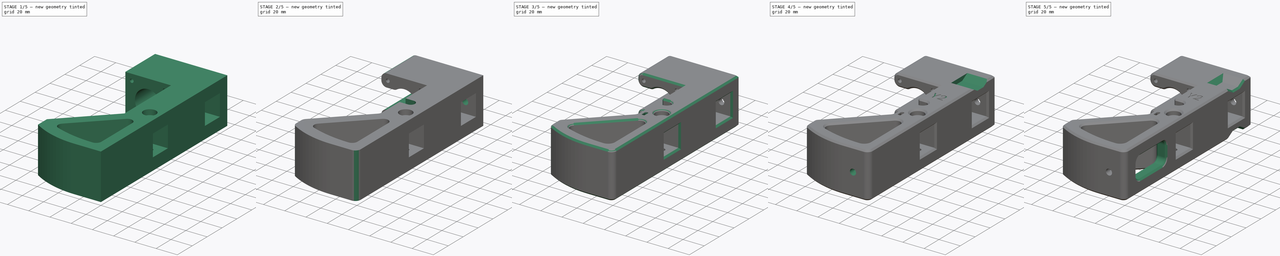
[diagram: build sequence overview — one tinted view per stage of 5, left to right]
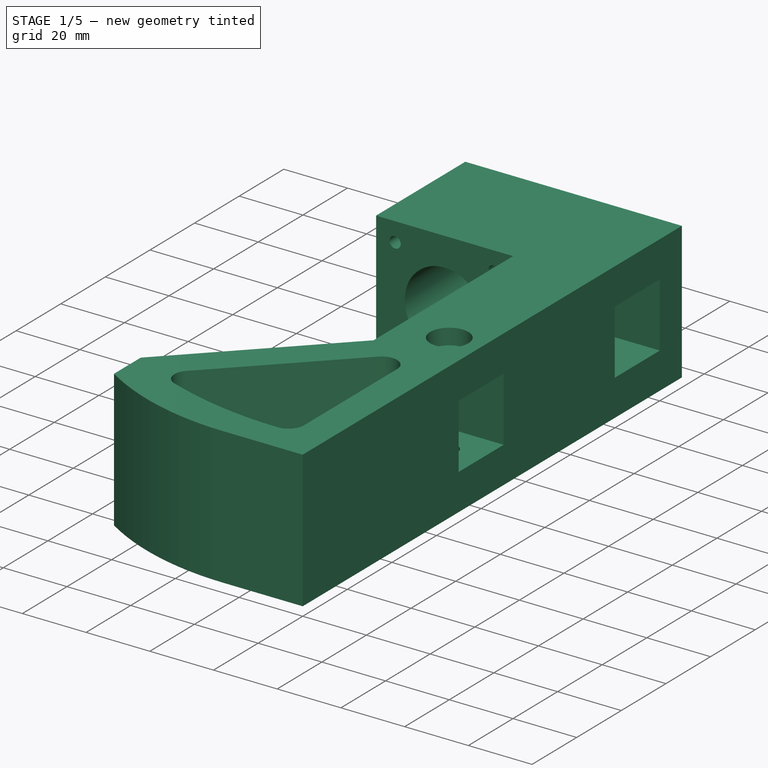
[diagram: stage 1 of 5 — iso view after this stage's code; geometry added in this stage tinted green]
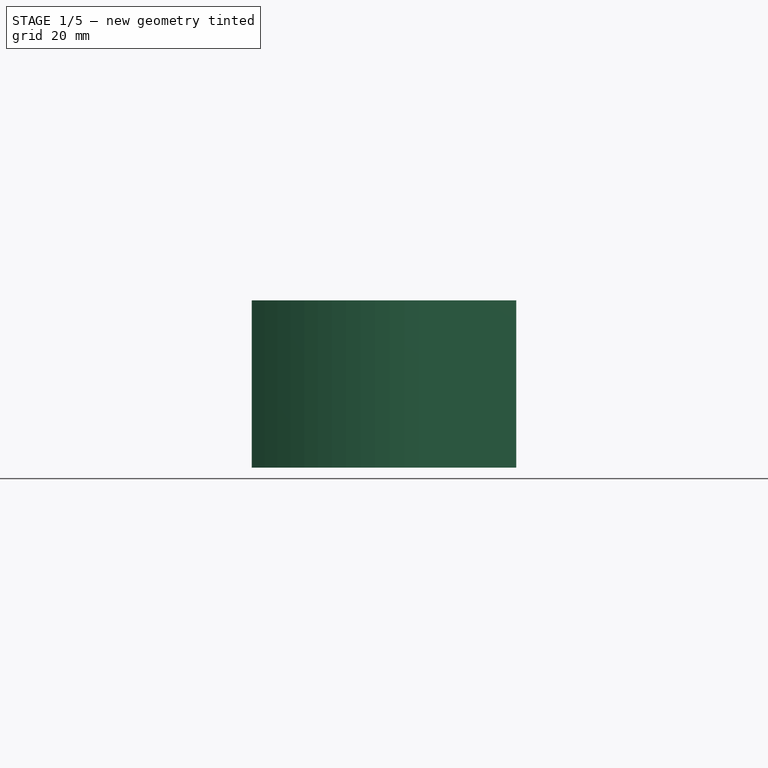
[diagram: stage 1 of 5 — front view after this stage's code; geometry added in this stage tinted green]
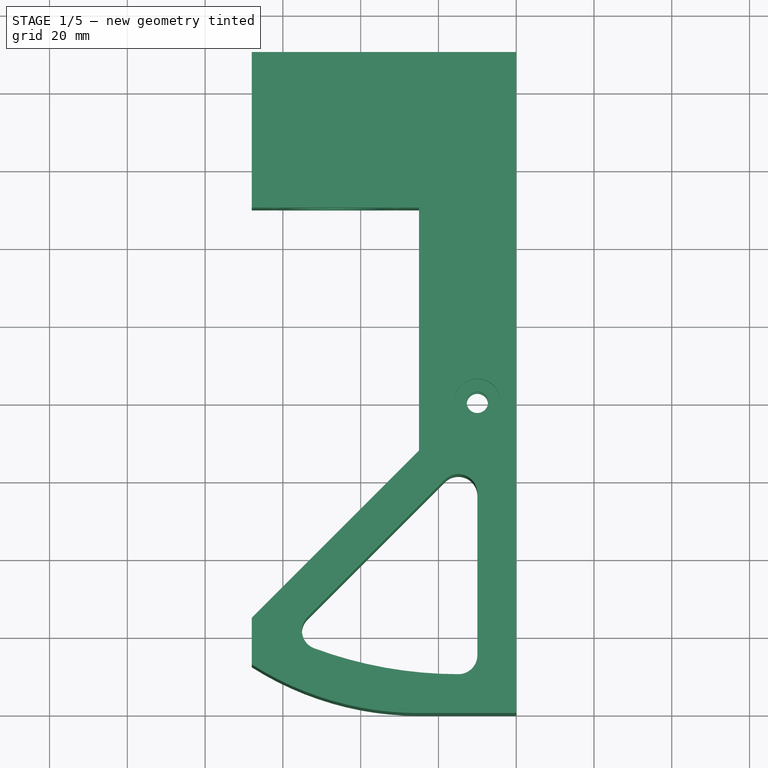
[diagram: stage 1 of 5 — top view after this stage's code; geometry added in this stage tinted green]
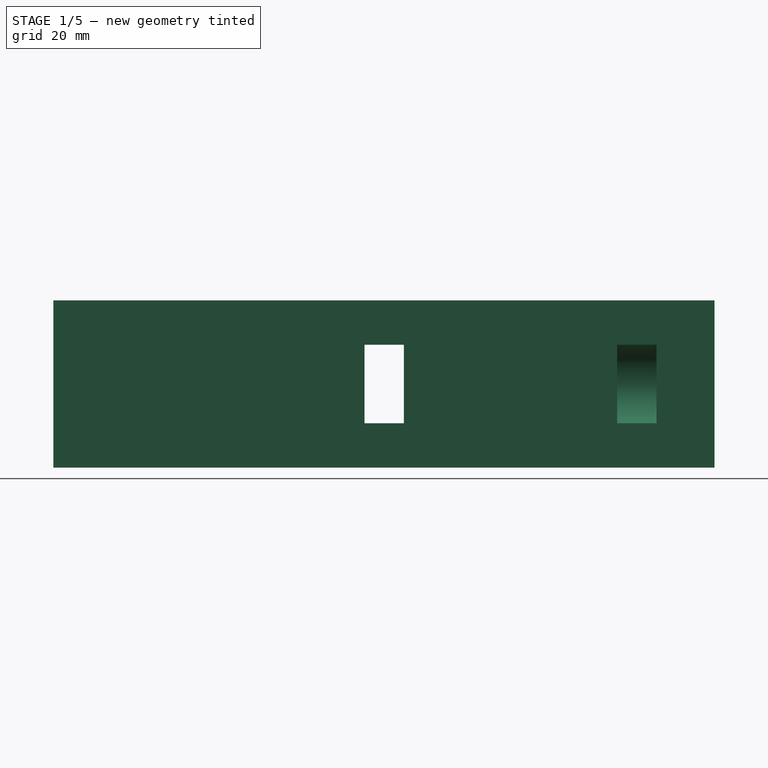
[diagram: stage 1 of 5 — right view after this stage's code; geometry added in this stage tinted green]
FCSTD DOCUMENT  (FreeCAD 0.20R29603 (Git))
Label: back-leg
License: All rights reserved
LicenseURL: http://en.wikipedia.org/wiki/All_rights_reserved
objects: Sketcher::SketchObject×17, PartDesign::Pocket×15, PartDesign::Plane×10, PartDesign::Fillet×5, PartDesign::Chamfer×4, PartDesign::Mirrored×3, PartDesign::Hole×2, Part::Part2DObjectPython×2, PartDesign::Pad×1, PartDesign::Line×1, PartDesign::Groove×1, PartDesign::Body×1
note: 90 computed .brp shape members not serialized (recipe doc carries the construction recipe); baked Part::Feature solids carry a one-line shape summary decoded from their .brp

FEATURE [Sketcher::SketchObject] Sketch
  FullyConstrained = true
  MapMode = 5
  Support = -> [XY_Plane]
  sketch-geometry (20):
    g0: LineSegment StartX=0 StartY=0 StartZ=0 EndX=0 EndY=170 EndZ=0
    g1: LineSegment StartX=0 StartY=170 StartZ=0 EndX=-68 EndY=170 EndZ=0
    g2: LineSegment StartX=-68 StartY=170 StartZ=0 EndX=-68 EndY=130 EndZ=0
    g3: LineSegment StartX=-68 StartY=130 StartZ=0 EndX=-25 EndY=130 EndZ=0
    g4: LineSegment StartX=-25 StartY=130 StartZ=0 EndX=-25 EndY=67.5 EndZ=0
    g5: LineSegment StartX=-25 StartY=67.5 StartZ=0 EndX=-68 EndY=24.5 EndZ=0
    g6: LineSegment StartX=-68 StartY=24.5 StartZ=0 EndX=-68 EndY=12.5 EndZ=0
    g7: LineSegment StartX=0 StartY=0 StartZ=0 EndX=-25 EndY=0 EndZ=0
    g8: ArcOfCircle CenterX=-25 CenterY=80.21 CenterZ=0 NormalX=0 NormalY=0 NormalZ=1 AngleXU=0 Radius=80.21 StartAngle=4.14659 EndAngle=4.71239
    g9: LineSegment StartX=-10 StartY=14.875 StartZ=0 EndX=-10 EndY=56.5886 EndZ=0
    g10: LineSegment StartX=-53.6835 StartY=24.6744 StartZ=0 EndX=-18.3221 EndY=60.0357 EndZ=0
    g11: ArcOfCircle CenterX=-14.875 CenterY=56.5886 CenterZ=0 NormalX=0 NormalY=0 NormalZ=1 AngleXU=0 Radius=4.875 StartAngle=4e-16 EndAngle=2.35619
    g12: ArcOfCircle CenterX=-14.875 CenterY=116.475 CenterZ=0 NormalX=0 NormalY=0 NormalZ=1 AngleXU=0 Radius=106.475 StartAngle=4.35691 EndAngle=4.71239
    g13: ArcOfCircle CenterX=-50.2364 CenterY=21.2272 CenterZ=0 NormalX=0 NormalY=0 NormalZ=1 AngleXU=0 Radius=4.875 StartAngle=2.35619 EndAngle=4.35691
    g14: ArcOfCircle CenterX=-14.875 CenterY=14.875 CenterZ=0 NormalX=0 NormalY=0 NormalZ=1 AngleXU=0 Radius=4.875 StartAngle=4.71239 EndAngle=6.28319
    g15: LineSegment StartX=-14.875 StartY=56.5886 StartZ=0 EndX=-50.2364 EndY=21.2272 EndZ=0
    g16: LineSegment StartX=-50.2364 StartY=21.2272 StartZ=0 EndX=-14.875 EndY=14.875 EndZ=0
    g17: LineSegment StartX=-14.875 StartY=14.875 StartZ=0 EndX=-14.875 EndY=56.5886 EndZ=0
    g18: Circle CenterX=-10 CenterY=80 CenterZ=0 NormalX=0 NormalY=0 NormalZ=1 AngleXU=0 Radius=2.75
    g19: GeomPoint X=-51.9331 Y=4.65701 Z=0
  constraints (56):
    c: PointOnObject(g0,g-2)
    c: Vertical(g0)
    c: PointOnObject(g0,g-1)
    c: Coincident(g1,g0)
    c: Horizontal(g1)
    c: Coincident(g2,g1)
    c: Vertical(g2)
    c: Coincident(g3,g2)
    c: Horizontal(g3)
    c: Coincident(g4,g3)
    c: Vertical(g4)
    c: Coincident(g5,g4)
    c: Coincident(g6,g5)
    c: Vertical(g6)
    c: Coincident(g7,g0)
    c: PointOnObject(g7,g-1)
    c: Coincident(g8,g6)
    c: Tangent(g8,g7) = 1.5708
    c: Vertical(g9)
    c: Parallel(g10,g5)
    c: Tangent(g10,g11) = 1.5708
    c: Tangent(g9,g11) = -1.5708
    c: Tangent(g14,g9) = -1.5708
    c: Tangent(g14,g12) = -1.5708
    c: Tangent(g13,g12) = -1.5708
    c: Equal(g13,g14)
    c: Equal(g14,g11)
    c: DistanceX(g9,g0) = 10
    c: Angle(g5,g-2) = 0.785398
    c: DistanceX(g4,g0) = 25
    c: Vertical(g4,g7)
    c: Distance(g10,g5) = 10
    c: DistanceX(g6,g0) = 68
    c: DistanceY(g7,g6) = 12.5
    c: DistanceY(g6,g6) = 12
    c: Tangent(g13,g10) = 1.5708
    c: DistanceY(g0,g0) = 170
    c: Coincident(g15,g11)
    c: Coincident(g15,g13)
    c: Coincident(g16,g13)
    c: Coincident(g16,g14)
    c: Coincident(g17,g14)
    c: Coincident(g17,g11)
    c: Diameter(g11) = 9.75
    c: Angle(g16,g15) = 1.0472
    c: DistanceX(g1,g0) = 68
    c: DistanceY(g2,g1) = 40
    c: Vertical(g12,g14)
    c: DistanceY(g7,g14) = 18
    c: DistanceX(g18,g0) = 10
    c: DistanceY(g0,g18) = 80
    c: Diameter(g18) = 5.5
    c: PointOnObject(g19,g8)
    c: Vertical(g19,g12)
    c: Distance(g19,g12) = 12
    c: DistanceY(g7,g12) = 10
FEATURE [PartDesign::Pad] Pad  label="Base Geometry"
  Direction = (1,1,1)
  Length = 43
  Length2 = 100
  Midplane = true
  Profile = -> Sketch
  Type = 0
FEATURE [Sketcher::SketchObject] Sketch002
  ExternalGeometry = -> [Pad,Sketch]
  FullyConstrained = true
  MapMode = 5
  Support = -> [XY_Plane]
  sketch-geometry (27):
    g0: LineSegment StartX=-20 StartY=69.9 StartZ=0 EndX=0 EndY=69.9 EndZ=0
    g1: LineSegment StartX=0 StartY=69.9 StartZ=0 EndX=0 EndY=90.1 EndZ=0
    g2: LineSegment StartX=0 StartY=90.1 StartZ=0 EndX=-20 EndY=90.1 EndZ=0
    g3: LineSegment StartX=-25 StartY=80 StartZ=0 EndX=-20 EndY=80 EndZ=0
    g4: LineSegment StartX=-20 StartY=80 StartZ=0 EndX=-20 EndY=90.1 EndZ=0
    g5: LineSegment StartX=-20 StartY=90.1 StartZ=0 EndX=0 EndY=90.1 EndZ=0
    g6: GeomPoint X=-10 Y=150 Z=0
    g7: LineSegment StartX=0 StartY=160.1 StartZ=0 EndX=-20 EndY=160.1 EndZ=0
    g8: LineSegment StartX=-20 StartY=160.1 StartZ=0 EndX=-20 EndY=139.9 EndZ=0
    g9: LineSegment StartX=-20 StartY=139.9 StartZ=0 EndX=0 EndY=139.9 EndZ=0
    g10: LineSegment StartX=0 StartY=139.9 StartZ=0 EndX=0 EndY=160.1 EndZ=0
    g11: LineSegment StartX=-20 StartY=160.1 StartZ=0 EndX=-20 EndY=155.06 EndZ=0
    g12: LineSegment StartX=-20 StartY=139.9 StartZ=0 EndX=-20 EndY=144.94 EndZ=0
    g13: LineSegment StartX=-20 StartY=155.06 StartZ=0 EndX=-25.04 EndY=155.06 EndZ=0
    g14: LineSegment StartX=-25.04 StartY=155.06 StartZ=0 EndX=-25.04 EndY=150 EndZ=0
    g15: LineSegment StartX=-25.04 StartY=150 StartZ=0 EndX=-40 EndY=150 EndZ=0
    g16: LineSegment StartX=-40 StartY=150 StartZ=0 EndX=-40 EndY=144.94 EndZ=0
    g17: LineSegment StartX=-40 StartY=144.94 StartZ=0 EndX=-20 EndY=144.94 EndZ=0
    g18: GeomPoint X=-20 Y=150 Z=0
    g19: GeomPoint X=-10 Y=160.1 Z=0
    g20: GeomPoint X=-10 Y=139.9 Z=0
    g21: LineSegment StartX=-40 StartY=150 StartZ=0 EndX=-40 EndY=155.06 EndZ=0
    g22: LineSegment StartX=-25.04 StartY=155.06 StartZ=0 EndX=-40 EndY=155.06 EndZ=0
    g23: LineSegment StartX=-20 StartY=90.1 StartZ=0 EndX=0 EndY=90.1 EndZ=0
    g24: LineSegment StartX=-20 StartY=80 StartZ=0 EndX=-20 EndY=69.9 EndZ=0
    g25: LineSegment StartX=-20 StartY=90.1 StartZ=0 EndX=-25 EndY=90.1 EndZ=0
    g26: LineSegment StartX=-25 StartY=90.1 StartZ=0 EndX=-25 EndY=80 EndZ=0
  constraints (70):
    c: Coincident(g0,g1)
    c: Coincident(g1,g2)
    c: Horizontal(g0)
    c: Horizontal(g2)
    c: Vertical(g1)
    c: Horizontal(g3)
    c: Coincident(g4,g3)
    c: Vertical(g4)
    c: PointOnObject(g1,g-2)
    c: Coincident(g5,g4)
    c: Coincident(g5,g1)
    c: Symmetric(g4,g0,g-3)
    c: Horizontal(g3,g-3)
    c: PointOnObject(g3,g-5)
    c: DistanceY(g0,g1) = 20.2  '2020 Pocket - Vertical Height'
    c: Vertical(g6,g-3)
    c: DistanceY(g-3,g6) = 70
    c: Coincident(g7,g8)
    c: Coincident(g8,g9)
    c: Coincident(g9,g10)
    c: Coincident(g10,g7)
    c: Vertical(g10)
    c: PointOnObject(g7,g-2)
    c: Coincident(g11,g7)
    c: PointOnObject(g11,g8)
    c: Coincident(g12,g9)
    c: PointOnObject(g12,g8)
    c: Equal(g11,g12)
    c: Coincident(g13,g11)
    c: Horizontal(g13)
    c: Coincident(g14,g13)
    c: Vertical(g14)
    c: Coincident(g15,g14)
    c: Horizontal(g15)
    c: Coincident(g16,g15)
    c: Vertical(g16)
    c: Coincident(g17,g16)
    c: Coincident(g17,g12)
    c: Horizontal(g17)
    c: Symmetric(g8,g8,g18)
    c: Horizontal(g18,g14)
    c: Equal(g13,g11)
    c: DistanceY(g11,g11) = 5.04
    c: DistanceX(g15,g12) = 20
    c: Horizontal(g7)
    c: PointOnObject(g19,g7)
    c: PointOnObject(g20,g9)
    c: Vertical(g20,g6)
    c: Symmetric(g19,g20,g6)
    c: Equal(g1,g10)
    c: Vertical(g11)
    c: Horizontal(g9)
    c: DistanceX(g7,g7) = 20
    c: DistanceX(g5,g5) = 20
    c: Coincident(g21,g16)
    c: Coincident(g22,g13)
    c: Horizontal(g22)
    c: Coincident(g21,g22)
    c: Equal(g22,g15)
    c: Coincident(g23,g4)
    c: Coincident(g23,g1)
    c: Coincident(g2,g4)
    c: Coincident(g24,g4)
    c: Vertical(g24)
    c: Coincident(g25,g2)
    c: PointOnObject(g25,g-5)
    c: Horizontal(g25)
    c: Coincident(g26,g25)
    c: Coincident(g0,g24)
    c: Coincident(g26,g3)
FEATURE [PartDesign::Pocket] Pocket  label="2020 Insert pockets + belt routing channels"
  BaseFeature = -> Pad
  Direction = (1,1,1)
  Length = 20.2
  Length2 = 100
  Midplane = true
  Profile = -> Sketch002
  Type = 0
FEATURE [PartDesign::Plane] DatumPlane  label="Top of foot reference plane"
  AttachmentOffset = pos=(0,0,170) rot=(0,0,1;0rad)
  Length = 106.638
  MapMode = 2
  Placement = pos=(0,170,3.77e-14) rot=(0,0.707107,0.707107;3.14159rad)
  ResizeMode = 0
  Support = -> [XZ_Plane]
  Width = 63.6382
FEATURE [Sketcher::SketchObject] Sketch003
  FullyConstrained = true
  MapMode = 5
  Placement = pos=(0,170,3.77e-14) rot=(0,0.707107,0.707107;3.14159rad)
  Support = -> [DatumPlane]
  sketch-geometry (11):
    g0: Circle CenterX=46.5 CenterY=0 CenterZ=0 NormalX=0 NormalY=0 NormalZ=1 AngleXU=0 Radius=12.5
    g1: LineSegment StartX=31 StartY=15.5 StartZ=0 EndX=62 EndY=15.5 EndZ=0
    g2: LineSegment StartX=62 StartY=15.5 StartZ=0 EndX=62 EndY=-15.5 EndZ=0
    g3: LineSegment StartX=31 StartY=-15.5 StartZ=0 EndX=31 EndY=15.5 EndZ=0
    g4: Circle CenterX=31 CenterY=15.5 CenterZ=0 NormalX=0 NormalY=0 NormalZ=1 AngleXU=0 Radius=1.75
    g5: Circle CenterX=62 CenterY=15.5 CenterZ=0 NormalX=0 NormalY=0 NormalZ=1 AngleXU=0 Radius=1.75
    g6: Circle CenterX=62 CenterY=-15.5 CenterZ=0 NormalX=0 NormalY=0 NormalZ=1 AngleXU=0 Radius=1.75
    g7: Circle CenterX=31 CenterY=-15.5 CenterZ=0 NormalX=0 NormalY=0 NormalZ=1 AngleXU=0 Radius=1.75
    g8: GeomPoint X=62 Y=1.6e-15 Z=0
    g9: LineSegment StartX=31 StartY=-15.5 StartZ=0 EndX=62 EndY=-15.5 EndZ=0
    g10: GeomPoint X=10 Y=0 Z=0
  constraints (26):
    c: Diameter(g0) = 25
    c: Coincident(g1,g2)
    c: Coincident(g3,g1)
    c: Horizontal(g1)
    c: Vertical(g2)
    c: Vertical(g3)
    c: Distance(g2) = 31
    c: Distance(g1) = 31
    c: Coincident(g4,g1)
    c: Coincident(g5,g1)
    c: Coincident(g6,g2)
    c: Diameter(g4) = 3.5
    c: Diameter(g7) = 3.5
    c: Diameter(g6) = 3.5
    c: Diameter(g5) = 3.5
    c: Distance(g0,g1) = 15.5
    c: Symmetric(g2,g2,g8)
    c: DistanceX(g0,g8) = 15.5
    c: Horizontal(g9)
    c: Coincident(g9,g6)
    c: Coincident(g7,g3)
    c: Coincident(g7,g9)
    c: Horizontal(g0,g-1)
    c: DistanceX(g-1,g0) = 46.5
    c: PointOnObject(g10,g-1)
    c: DistanceX(g-1,g10) = 10
FEATURE [PartDesign::Pocket] Pocket001  label="Inital creation of cutouts for pulley clearance"
  BaseFeature = -> Pocket
  Direction = (1,1,1)
  Length = 5
  Length2 = 100
  Profile = -> Sketch003
  Type = 2
FEATURE [PartDesign::Hole] Hole  label="Nema 11 Bolt Holes - M3 Counterbore"
  BaseFeature = -> Pocket001
  CustomThreadClearance = 0
  Depth = 50
  DepthType = 0
  Diameter = 3.4
  DrillForDepth = false
  DrillPoint = 1
  DrillPointAngle = 118
  HoleCutCountersinkAngle = 90
  HoleCutCustomValues = false
  HoleCutDepth = 35
  HoleCutDiameter = 6.1
  HoleCutType = 1
  ModelThread = false
  Profile = -> Sketch003
  Tapered = false
  TaperedAngle = 90
  ThreadClass = 0
  ThreadDepth = 23.5
  ThreadDepthType = 0
  ThreadDirection = 0
  ThreadFit = 0
  ThreadSize = 9
  ThreadType = 1
  Threaded = false
  UseCustomThreadClearance = false
FEATURE [PartDesign::Plane] DatumPlane001  label="Side Counterbore Reference Plane"
  Length = 119.933
  MapMode = 5
  Placement = pos=(0,0,-21.5) rot=(1,0,0;3.14159rad)
  ResizeMode = 0
  Support = -> [Hole]
  Width = 221.933
FEATURE [Sketcher::SketchObject] Sketch004
  ExternalGeometry = -> [Hole]
  FullyConstrained = true
  MapMode = 5
  Placement = pos=(0,0,-21.5) rot=(1,0,0;3.14159rad)
  Support = -> [DatumPlane001]
  sketch-geometry (1):
    g0: Circle CenterX=-10 CenterY=-80 CenterZ=0 NormalX=0 NormalY=0 NormalZ=1 AngleXU=0 Radius=6
  constraints (2):
    c: Coincident(g0,g-3)
    c: Diameter(g0) = 12
FEATURE [PartDesign::Pocket] Pocket002  label="Bottom 2020 Mounting Bolt - Counterbore1"
  BaseFeature = -> Hole
  Direction = (1,1,1)
  Length = 5
  Length2 = 100
  Profile = -> Sketch004
  Type = 0
FEATURE [PartDesign::Mirrored] Mirrored  label="Bottom 2020 Mounting Bolt - Counterbore1 - Mirrored to other side"
  BaseFeature = -> Pocket002
  MirrorPlane = -> XY_Plane
  Originals = -> [Pocket002]
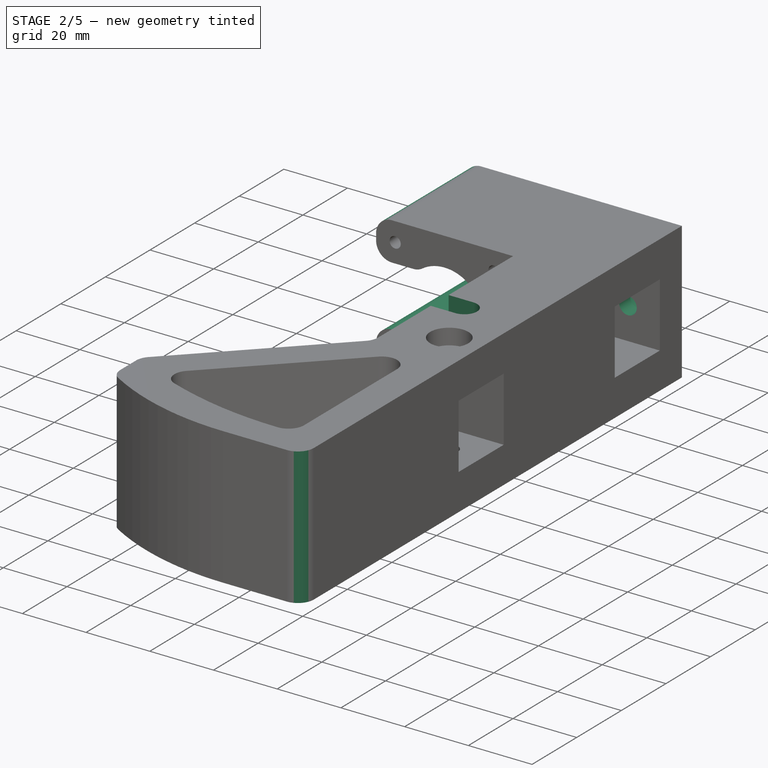
[diagram: stage 2 of 5 — iso view after this stage's code; geometry added in this stage tinted green]
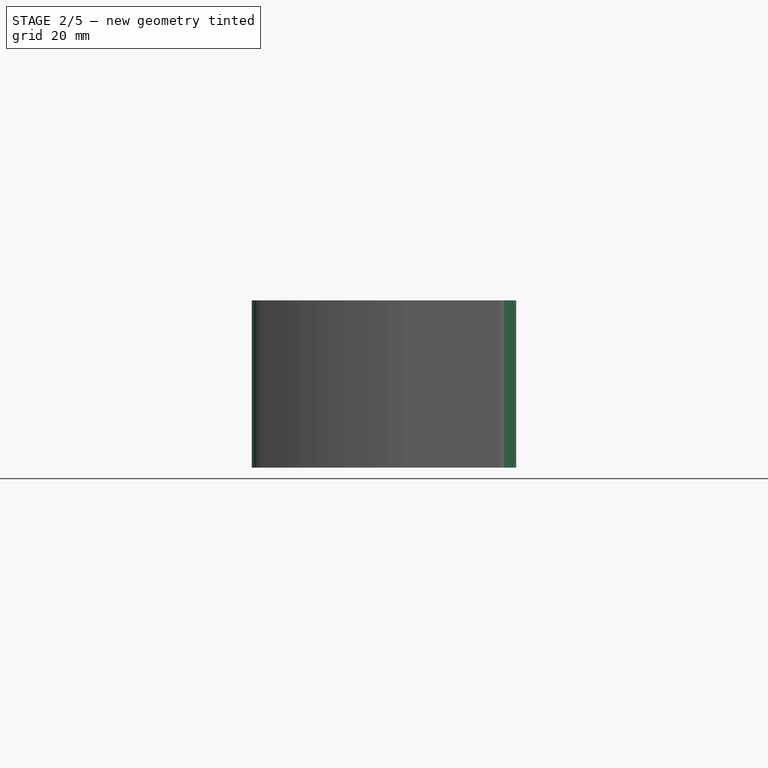
[diagram: stage 2 of 5 — front view after this stage's code; geometry added in this stage tinted green]
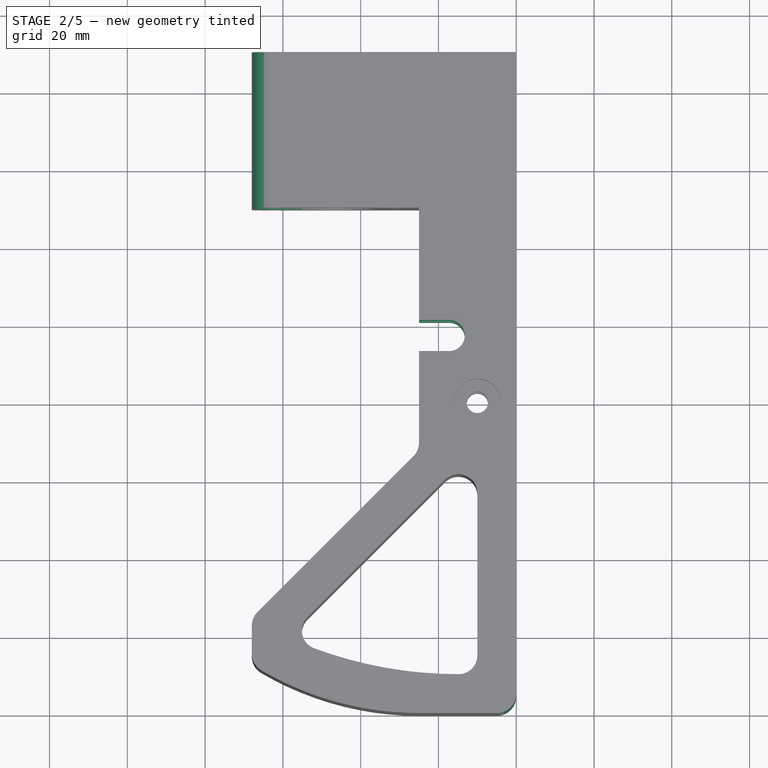
[diagram: stage 2 of 5 — top view after this stage's code; geometry added in this stage tinted green]
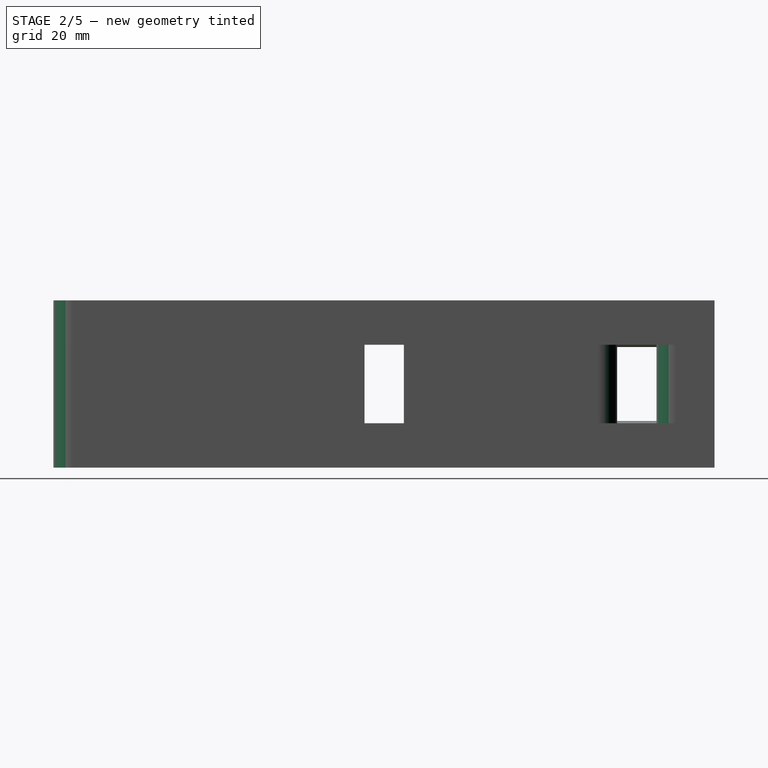
[diagram: stage 2 of 5 — right view after this stage's code; geometry added in this stage tinted green]
FEATURE [Sketcher::SketchObject] Sketch005
  FullyConstrained = true
  MapMode = 5
  Placement = pos=(0,170,3.77e-14) rot=(0,0.707107,0.707107;3.14159rad)
  Support = -> [DatumPlane]
  sketch-geometry (1):
    g0: Circle CenterX=10 CenterY=0 CenterZ=0 NormalX=0 NormalY=0 NormalZ=1 AngleXU=0 Radius=2.75
  constraints (3):
    c: PointOnObject(g0,g-1)
    c: DistanceX(g-1,g0) = 10
    c: Diameter(g0) = 5.5
FEATURE [PartDesign::Hole] Hole001  label="Topside M5 2020 mounting point"
  BaseFeature = -> Mirrored
  CustomThreadClearance = 0
  Depth = 25
  DepthType = 0
  Diameter = 5.5
  DrillForDepth = false
  DrillPoint = 0
  DrillPointAngle = 118
  HoleCutCountersinkAngle = 90
  HoleCutCustomValues = false
  HoleCutDepth = 5
  HoleCutDiameter = 12
  HoleCutType = 1
  ModelThread = false
  Profile = -> Sketch005
  Tapered = false
  TaperedAngle = 90
  ThreadClass = 0
  ThreadDepth = 23.5
  ThreadDepthType = 0
  ThreadDirection = 0
  ThreadFit = 0
  ThreadSize = 13
  ThreadType = 1
  Threaded = false
  UseCustomThreadClearance = false
FEATURE [Sketcher::SketchObject] Sketch006
  ExternalGeometry = -> [Sketch]
  FullyConstrained = true
  MapMode = 5
  Support = -> [XY_Plane]
  sketch-geometry (5):
    g0: LineSegment StartX=-78 StartY=180 StartZ=0 EndX=-46.5 EndY=180 EndZ=0
    g1: LineSegment StartX=-46.5 StartY=180 StartZ=0 EndX=-46.5 EndY=120 EndZ=0
    g2: LineSegment StartX=-46.5 StartY=120 StartZ=0 EndX=-78 EndY=120 EndZ=0
    g3: LineSegment StartX=-78 StartY=120 StartZ=0 EndX=-78 EndY=180 EndZ=0
    g4: GeomPoint X=-46.5 Y=130 Z=0
  constraints (13):
    c: Coincident(g0,g1)
    c: Coincident(g1,g2)
    c: Coincident(g2,g3)
    c: Coincident(g3,g0)
    c: Horizontal(g0)
    c: Horizontal(g2)
    c: Vertical(g1)
    c: Vertical(g3)
    c: Symmetric(g-5,g-5,g4)
    c: Vertical(g1,g4)
    c: DistanceY(g1,g4) = 10
    c: DistanceX(g2,g-5) = 10
    c: DistanceY(g-4,g0) = 10
FEATURE [PartDesign::Pocket] Pocket003  label="Pulley Installation Cutout"
  BaseFeature = -> Hole001
  Direction = (1,1,1)
  Length = 19
  Length2 = 100
  Midplane = true
  Profile = -> Sketch006
  Type = 0
FEATURE [Sketcher::SketchObject] Sketch007
  AttachmentOffset = pos=(0,0,-5) rot=(0,0,1;0rad)
  ExternalGeometry = -> [Pocket003]
  FullyConstrained = true
  MapMode = 5
  Placement = pos=(-5,1.1e-15,-1.1e-15) rot=(0.57735,0.57735,0.57735;2.0944rad)
  Support = -> [YZ_Plane]
  sketch-geometry (4):
    g0: LineSegment StartX=93.1 StartY=11.5 StartZ=0 EndX=130 EndY=11.5 EndZ=0
    g1: LineSegment StartX=130 StartY=11.5 StartZ=0 EndX=130 EndY=-11.5 EndZ=0
    g2: LineSegment StartX=130 StartY=-11.5 StartZ=0 EndX=93.1 EndY=-11.5 EndZ=0
    g3: LineSegment StartX=93.1 StartY=-11.5 StartZ=0 EndX=93.1 EndY=11.5 EndZ=0
  constraints (13):
    c: Coincident(g0,g1)
    c: Coincident(g1,g2)
    c: Coincident(g2,g3)
    c: Coincident(g3,g0)
    c: Horizontal(g0)
    c: Horizontal(g2)
    c: Vertical(g3)
    c: Symmetric(g0,g1,g-1)
    c: DistanceY(g0,g-5) = 10
    c: DistanceX(g-6,g2) = 3
    c: DistanceX(g0,g-5) = 0
    c: DistanceX(g0,g0) = 36.9
    c: DistanceY(g3,g3) = 23
FEATURE [PartDesign::Pocket] Pocket004  label="NEMA 17 Wire Turnaround Pocket"
  BaseFeature = -> Pocket003
  Direction = (1,1,1)
  Length = 0
  Length2 = 100
  Offset = 2
  Profile = -> Sketch007
  Type = 3
  UpToFace = -> Pocket003 [Face19]
FEATURE [Sketcher::SketchObject] Sketch008
  ExternalGeometry = -> [Pocket004,Sketch007]
  FullyConstrained = true
  MapMode = 5
  Support = -> [XY_Plane]
  sketch-geometry (4):
    g0: ArcOfCircle CenterX=-17.25 CenterY=97.1 CenterZ=0 NormalX=0 NormalY=0 NormalZ=1 AngleXU=0 Radius=4 StartAngle=4.71239 EndAngle=7.85398
    g1: LineSegment StartX=-29.25 StartY=93.1 StartZ=0 EndX=-17.25 EndY=93.1 EndZ=0
    g2: LineSegment StartX=-17.25 StartY=101.1 StartZ=0 EndX=-29.25 EndY=101.1 EndZ=0
    g3: LineSegment StartX=-29.25 StartY=93.1 StartZ=0 EndX=-29.25 EndY=101.1 EndZ=0
  constraints (14):
    c: PointOnObject(g0,g-3)
    c: Vertical(g0,g0)
    c: Vertical(g0,g0)
    c: DistanceX(g-4,g0) = 12
    c: Coincident(g1,g0)
    c: Horizontal(g1)
    c: Coincident(g2,g0)
    c: Horizontal(g2)
    c: Coincident(g3,g1)
    c: Coincident(g3,g2)
    c: Vertical(g3)
    c: Diameter(g0) = 8
    c: DistanceY(g2,g-4) = 28.9
    c: Vertical(g2,g-4)
FEATURE [PartDesign::Pocket] Pocket005  label="Wire Side Channel Exit"
  BaseFeature = -> Pocket004
  Direction = (1,1,1)
  Length = 25
  Length2 = 25
  Profile = -> Sketch008
  Type = 4
FEATURE [Sketcher::SketchObject] Sketch009
  FullyConstrained = false
  MapMode = 5
  Placement = pos=(0,0,-21.5) rot=(1,0,0;3.14159rad)
  Support = -> [Pocket005]
  sketch-geometry (8):
    g0: LineSegment StartX=-37.9081 StartY=-85.5819 StartZ=0 EndX=2.01425 EndY=-85.5819 EndZ=0
    g1: LineSegment StartX=2.01425 StartY=-85.5819 StartZ=0 EndX=2.01425 EndY=-143.283 EndZ=0
    g2: LineSegment StartX=2.01425 StartY=-143.283 StartZ=0 EndX=-37.9081 EndY=-143.283 EndZ=0
    g3: LineSegment StartX=-37.9081 StartY=-143.283 StartZ=0 EndX=-37.9081 EndY=-85.5819 EndZ=0
    g4: LineSegment StartX=-94.3297 StartY=21.441 StartZ=0 EndX=11.3887 EndY=21.441 EndZ=0
    g5: LineSegment StartX=11.3887 StartY=21.441 StartZ=0 EndX=11.3887 EndY=-173.023 EndZ=0
    g6: LineSegment StartX=11.3887 StartY=-173.023 StartZ=0 EndX=-94.3297 EndY=-173.023 EndZ=0
    g7: LineSegment StartX=-94.3297 StartY=-173.023 StartZ=0 EndX=-94.3297 EndY=21.441 EndZ=0
  constraints (16):
    c: Coincident(g0,g1)
    c: Coincident(g1,g2)
    c: Coincident(g2,g3)
    c: Coincident(g3,g0)
    c: Horizontal(g0)
    c: Horizontal(g2)
    c: Vertical(g1)
    c: Vertical(g3)
    c: Coincident(g4,g5)
    c: Coincident(g5,g6)
    c: Coincident(g6,g7)
    c: Coincident(g7,g4)
    c: Horizontal(g4)
    c: Horizontal(g6)
    c: Vertical(g5)
    c: Vertical(g7)
FEATURE [PartDesign::Plane] DatumPlane002
  Length = 106.638
  MapMode = 5
  Placement = pos=(0,90.1,0) rot=(1,0,0;1.5708rad)
  ResizeMode = 0
  Support = -> [Pocket005]
  Width = 63.6382
FEATURE [Sketcher::SketchObject] Sketch010
  ExternalGeometry = -> [Pocket005]
  FullyConstrained = true
  MapMode = 5
  Placement = pos=(0,90.1,0) rot=(1,0,0;1.5708rad)
  Support = -> [DatumPlane002]
  sketch-geometry (7):
    g0: LineSegment StartX=-20 StartY=-8.375 StartZ=0 EndX=-25 EndY=-8.375 EndZ=0
    g1: LineSegment StartX=-25 StartY=-8.375 StartZ=0 EndX=-25 EndY=8.375 EndZ=0
    g2: LineSegment StartX=-25 StartY=8.375 StartZ=0 EndX=-20 EndY=8.375 EndZ=0
    g3: LineSegment StartX=-20 StartY=8.375 StartZ=0 EndX=-20 EndY=-8.375 EndZ=0
    g4: LineSegment StartX=-20 StartY=-8.375 StartZ=0 EndX=-18.5 EndY=-8.375 EndZ=0
    g5: LineSegment StartX=-18.5 StartY=-8.375 StartZ=0 EndX=-18.5 EndY=8.375 EndZ=0
    g6: LineSegment StartX=-18.5 StartY=8.375 StartZ=0 EndX=-20 EndY=8.375 EndZ=0
  constraints (18):
    c: Coincident(g0,g1)
    c: Coincident(g1,g2)
    c: Coincident(g2,g3)
    c: Coincident(g3,g0)
    c: Horizontal(g0)
    c: Horizontal(g2)
    c: Vertical(g3)
    c: PointOnObject(g0,g-5)
    c: PointOnObject(g1,g-4)
    c: Symmetric(g0,g1,g-1)
    c: DistanceY(g0,g1) = 16.75
    c: Coincident(g4,g0)
    c: Horizontal(g4)
    c: Coincident(g5,g4)
    c: Vertical(g5)
    c: Coincident(g6,g5)
    c: Tangent(g6,g2) = 1.5708
    c: DistanceX(g0,g4) = 1.5
FEATURE [PartDesign::Pocket] Pocket006  label="Cutout for metal protrusion near NEMA 17 cable port"
  BaseFeature = -> Pocket005
  Direction = (1,1,1)
  Length = 5
  Length2 = 100
  Profile = -> Sketch010
  Type = 0
FEATURE [PartDesign::Fillet] Fillet
  Base = -> Pocket006 [Edge43,Edge150,Edge134,Edge25,Edge13,Edge153,Edge154,Edge181,Edge183,Edge101,Edge102,Edge103,Edge1]
  BaseFeature = -> Pocket006
  Radius = 5
  SupportTransform = false
  UseAllEdges = false
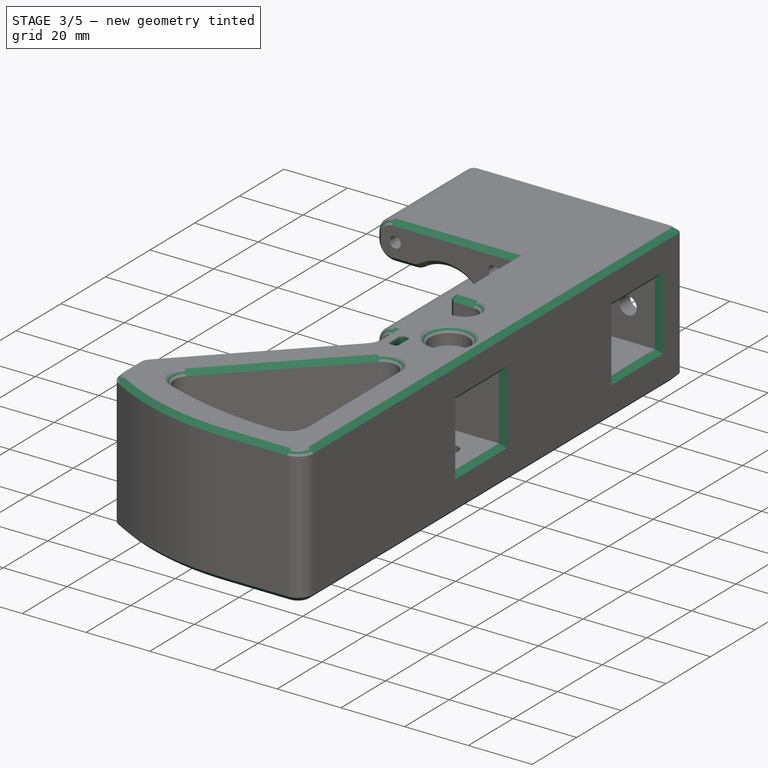
[diagram: stage 3 of 5 — iso view after this stage's code; geometry added in this stage tinted green]
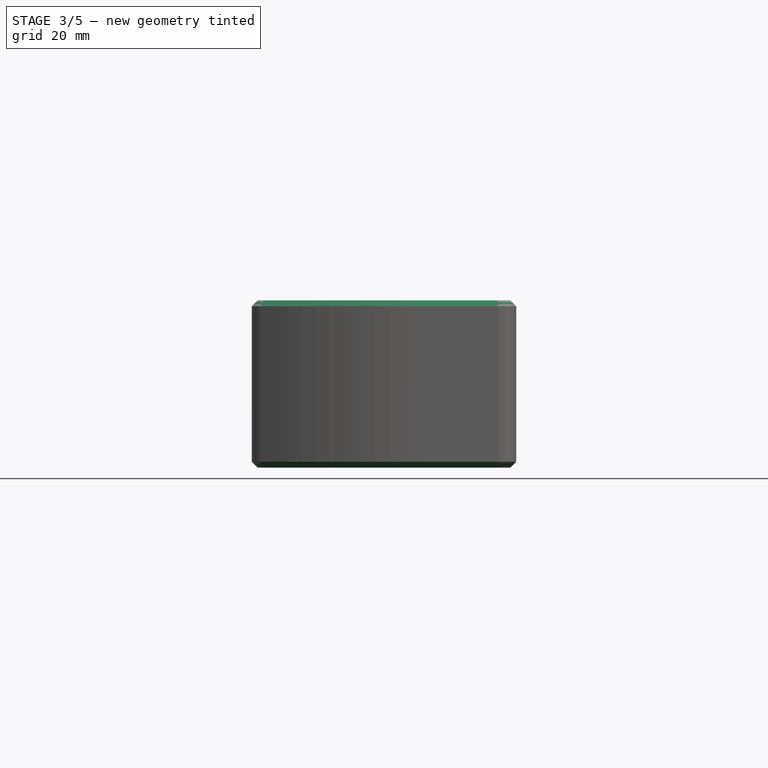
[diagram: stage 3 of 5 — front view after this stage's code; geometry added in this stage tinted green]
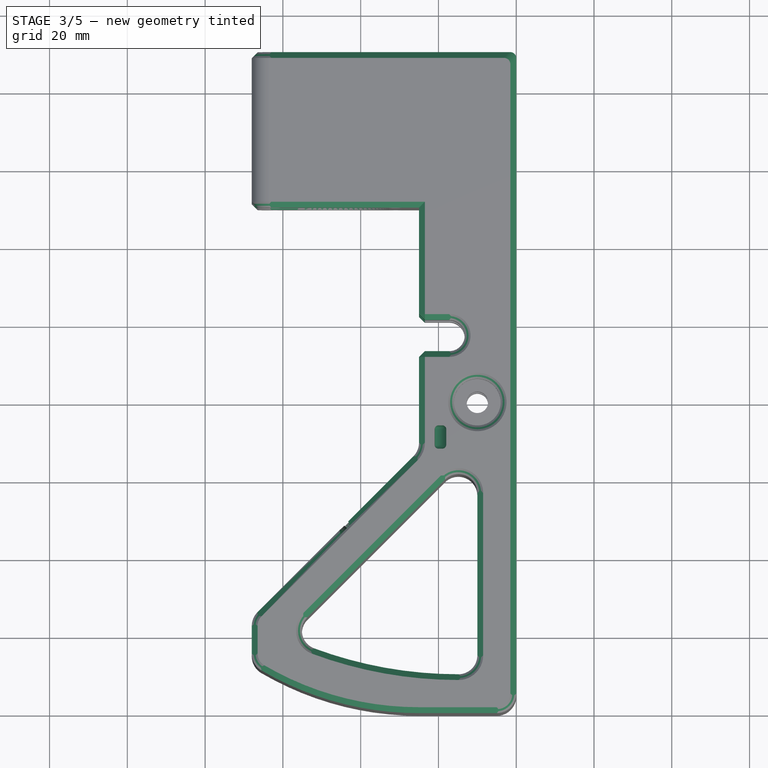
[diagram: stage 3 of 5 — top view after this stage's code; geometry added in this stage tinted green]
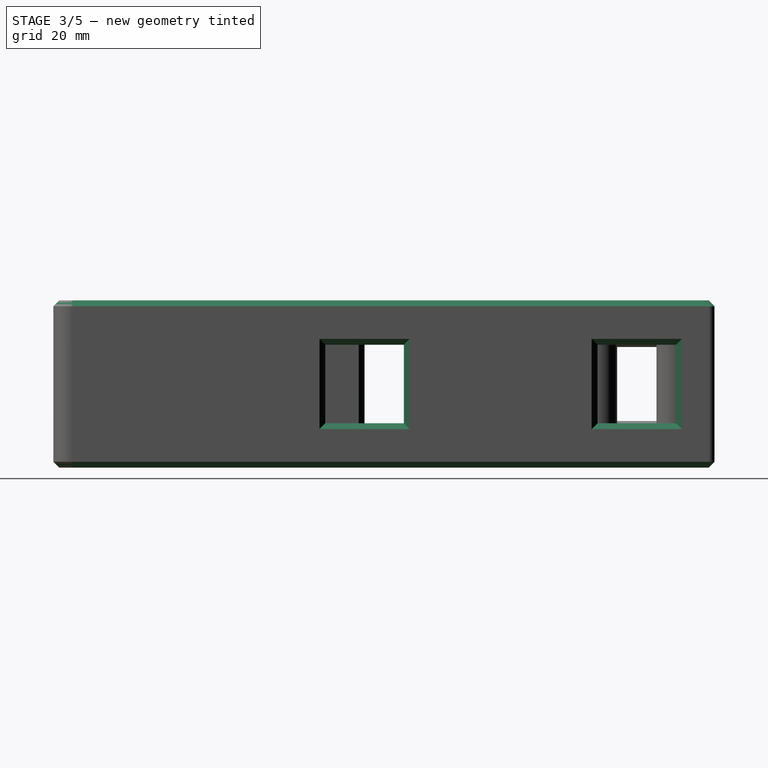
[diagram: stage 3 of 5 — right view after this stage's code; geometry added in this stage tinted green]
FEATURE [PartDesign::Chamfer] Chamfer
  Angle = 45
  Base = -> Fillet [Face5,Face2,Edge179,Edge180,Edge146,Edge192,Edge151,Edge153,Edge52,Edge11,Edge10,Edge9,Edge12,Edge6,Edge5,Edge8,Edge7,Edge201,Edge240,Edge237,Edge241,Edge231,Edge147,Edge193]
  BaseFeature = -> Fillet
  ChamferType = 0
  FlipDirection = false
  Size = 1.5
  Size2 = 1
  SupportTransform = false
  UseAllEdges = false
FEATURE [PartDesign::Fillet] Fillet001
  Base = -> Chamfer [Edge4]
  BaseFeature = -> Chamfer
  Radius = 1.5
  SupportTransform = false
  UseAllEdges = false
FEATURE [PartDesign::Fillet] Fillet002
  Base = -> Fillet001 [Edge24,Edge13]
  BaseFeature = -> Fillet001
  Radius = 2.5
  SupportTransform = false
  UseAllEdges = false
FEATURE [PartDesign::Plane] DatumPlane003  label="PrintPlane"
  Length = 214.748
  MapMode = 5
  Placement = pos=(0,0,0) rot=(0.57735,0.57735,0.57735;2.0944rad)
  ResizeMode = 0
  Support = -> [Fillet002]
  Width = 69.7484
FEATURE [PartDesign::Plane] DatumPlane004
  Length = 119.933
  MapMode = 5
  Placement = pos=(0,0,21.5) rot=(0,0,1;0rad)
  ResizeMode = 0
  Support = -> [Fillet002]
  Width = 221.933
FEATURE [Sketcher::SketchObject] Sketch015
  FullyConstrained = true
  MapMode = 5
  Placement = pos=(0,0,21.5) rot=(0,0,1;0rad)
  Support = -> [DatumPlane004]
  sketch-geometry (6):
    g0: LineSegment StartX=-21 StartY=74 StartZ=0 EndX=-18 EndY=74 EndZ=0
    g1: LineSegment StartX=-18 StartY=74 StartZ=0 EndX=-18 EndY=68 EndZ=0
    g2: LineSegment StartX=-18 StartY=68 StartZ=0 EndX=-21 EndY=68 EndZ=0
    g3: LineSegment StartX=-21 StartY=68 StartZ=0 EndX=-21 EndY=74 EndZ=0
    g4: GeomPoint X=0 Y=0 Z=0
    g5: GeomPoint X=-19.5 Y=68 Z=0
  constraints (15):
    c: Coincident(g0,g1)
    c: Coincident(g1,g2)
    c: Coincident(g2,g3)
    c: Coincident(g3,g0)
    c: Horizontal(g0)
    c: Horizontal(g2)
    c: Vertical(g1)
    c: Vertical(g3)
    c: DistanceX(g1,g-1) = 18
    c: PointOnObject(g4,g-1)
    c: Symmetric(g2,g2,g5)
    c: DistanceY(g4,g5) = 68
    c: PointOnObject(g4,g-2)
    c: DistanceY(g2,g0) = 6
    c: DistanceX(g0,g0) = 3
FEATURE [PartDesign::Line] DatumLine  label="Cable Tie Groove - Revolve Line"
  AttacherType = Attacher::AttachEngineLine
  Length = 20
  MapMode = 44
  Placement = pos=(-24.25,1.705e-13,20.75) rot=(0,0.707107,0.707107;3.14159rad)
  ResizeMode = 0
  Support = -> [Fillet002]
FEATURE [PartDesign::Groove] Groove  label="Cable Tie Groove"
  Angle = 360
  Axis = (-1e-16,1,-8.3e-15)
  Base = (-24.25,1.705e-13,20.75)
  BaseFeature = -> Fillet002
  Profile = -> Sketch015
  ReferenceAxis = -> DatumLine
  Reversed = true
FEATURE [PartDesign::Mirrored] Mirrored001  label="Mirrors Cable Tie Groove to opposite side"
  BaseFeature = -> Groove
  MirrorPlane = -> XY_Plane
  Originals = -> [Groove]
FEATURE [PartDesign::Fillet] Fillet003  label="Cable Tie Groove Fillet"
  Base = -> Mirrored001 [Edge226,Edge229,Edge223,Edge225,Edge309,Edge307,Edge310,Edge313]
  BaseFeature = -> Mirrored001
  Radius = 1
  SupportTransform = false
  UseAllEdges = false
FEATURE [PartDesign::Plane] DatumPlane005  label="Opulo-Logo-Plane"
  Length = 223.828
  MapMode = 5
  Placement = pos=(-46.25,46.25,0) rot=(-0.281085,0.678598,0.678598;3.68962rad)
  ResizeMode = 0
  Support = -> [Fillet003]
  Width = 70.1815
FEATURE [Sketcher::SketchObject] Sketch018
  AttachmentOffset = pos=(19,11,0) rot=(0,0,-1;1.5708rad)
  FullyConstrained = false
  MapMode = 5
  Placement = pos=(-59.685,32.815,11) rot=(-0.678598,0.281085,0.678598;2.59356rad)
  Support = -> [DatumPlane005]
  sketch-geometry (32):
    g0: LineSegment StartX=8 StartY=-1.5 StartZ=0 EndX=8 EndY=1.5 EndZ=0
    g1: LineSegment StartX=8 StartY=1.5 StartZ=0 EndX=21.9488 EndY=1.5 EndZ=0
    g2: ArcOfCircle CenterX=1.8e-15 CenterY=1.8e-15 CenterZ=0 NormalX=0 NormalY=0 NormalZ=1 AngleXU=3.14159 Radius=22 StartAngle=3.20983 EndAngle=4.64415
    g3: LineSegment StartX=1.5 StartY=21.9488 StartZ=0 EndX=1.5 EndY=17 EndZ=0
    g4: LineSegment StartX=1.5 StartY=17 StartZ=0 EndX=-1.5 EndY=17 EndZ=0
    g5: LineSegment StartX=-1.5 StartY=17 StartZ=0 EndX=-1.5 EndY=21.9488 EndZ=0
    g6: ArcOfCircle CenterX=7.1e-15 CenterY=-5.3e-15 CenterZ=0 NormalX=0 NormalY=0 NormalZ=1 AngleXU=3.14159 Radius=22 StartAngle=4.78062 EndAngle=6.21495
    g7: LineSegment StartX=-21.9488 StartY=1.5 StartZ=0 EndX=-17 EndY=1.5 EndZ=0
    g8: LineSegment StartX=-17 StartY=1.5 StartZ=0 EndX=-17 EndY=-1.5 EndZ=0
    g9: LineSegment StartX=-17 StartY=-1.5 StartZ=0 EndX=-21.9488 EndY=-1.5 EndZ=0
    g10: ArcOfCircle CenterX=-7.1e-15 CenterY=5.3e-15 CenterZ=0 NormalX=0 NormalY=0 NormalZ=1 AngleXU=3.14159 Radius=22 StartAngle=0.0682348 EndAngle=1.50256
    g11: LineSegment StartX=-1.5 StartY=-21.9488 StartZ=0 EndX=-1.5 EndY=-8 EndZ=0
    g12: LineSegment StartX=-1.5 StartY=-8 StartZ=0 EndX=1.5 EndY=-8 EndZ=0
    g13: LineSegment StartX=1.5 StartY=-8 StartZ=0 EndX=1.5 EndY=-21.9488 EndZ=0
    g14: ArcOfCircle CenterX=1.8e-15 CenterY=-7.1e-15 CenterZ=0 NormalX=0 NormalY=0 NormalZ=1 AngleXU=3.14159 Radius=22 StartAngle=1.63903 EndAngle=3.07336
    g15: LineSegment StartX=21.9488 StartY=-1.5 StartZ=0 EndX=8 EndY=-1.5 EndZ=0
    g16: LineSegment StartX=-1.5 StartY=-28 StartZ=0 EndX=-1.5 EndY=-24.955 EndZ=0
    g17: ArcOfCircle CenterX=5.3e-15 CenterY=-7.1e-15 CenterZ=0 NormalX=0 NormalY=0 NormalZ=1 AngleXU=-1e-16 Radius=25 StartAngle=3.20163 EndAngle=4.65235
    g18: LineSegment StartX=-24.955 StartY=-1.5 StartZ=0 EndX=-28 EndY=-1.5 EndZ=0
    g19: LineSegment StartX=-28 StartY=-1.5 StartZ=0 EndX=-28 EndY=1.5 EndZ=0
    g20: LineSegment StartX=-28 StartY=1.5 StartZ=0 EndX=-24.955 EndY=1.5 EndZ=0
    g21: ArcOfCircle CenterX=8.9e-15 CenterY=-7.1e-15 CenterZ=0 NormalX=0 NormalY=0 NormalZ=1 AngleXU=-1e-16 Radius=25 StartAngle=1.63083 EndAngle=3.08156
    g22: LineSegment StartX=-1.5 StartY=24.955 StartZ=0 EndX=-1.5 EndY=28 EndZ=0
    g23: LineSegment StartX=-1.5 StartY=28 StartZ=0 EndX=1.5 EndY=28 EndZ=0
    g24: LineSegment StartX=1.5 StartY=28 StartZ=0 EndX=1.5 EndY=24.955 EndZ=0
    g25: ArcOfCircle CenterX=7.1e-15 CenterY=-5.3e-15 CenterZ=0 NormalX=0 NormalY=0 NormalZ=1 AngleXU=-1e-16 Radius=25 StartAngle=0.0600361 EndAngle=1.51076
    g26: LineSegment StartX=24.955 StartY=1.5 StartZ=0 EndX=28 EndY=1.5 EndZ=0
    g27: LineSegment StartX=28 StartY=1.5 StartZ=0 EndX=28 EndY=-1.5 EndZ=0
    g28: LineSegment StartX=28 StartY=-1.5 StartZ=0 EndX=24.955 EndY=-1.5 EndZ=0
    g29: ArcOfCircle CenterX=5.3e-15 CenterY=1.8e-15 CenterZ=0 NormalX=0 NormalY=0 NormalZ=1 AngleXU=-1e-16 Radius=25 StartAngle=4.77243 EndAngle=6.22315
    g30: LineSegment StartX=1.5 StartY=-24.955 StartZ=0 EndX=1.5 EndY=-28 EndZ=0
    g31: LineSegment StartX=1.5 StartY=-28 StartZ=0 EndX=-1.5 EndY=-28 EndZ=0
  constraints (39):
    c: Vertical(g0)
    c: Coincident(g0,g1)
    c: Coincident(g1,g2)
    c: Coincident(g2,g3)
    c: Coincident(g3,g4)
    c: Horizontal(g4)
    c: Coincident(g4,g5)
    c: Coincident(g5,g6)
    c: Coincident(g6,g7)
    c: Coincident(g7,g8)
    c: Vertical(g8)
    c: Coincident(g8,g9)
    c: Coincident(g9,g10)
    c: Coincident(g10,g11)
    c: Coincident(g11,g12)
    c: Coincident(g12,g13)
    c: Coincident(g13,g14)
    c: Coincident(g14,g15)
    c: Coincident(g15,g0)
    c: Coincident(g16,g17)
    c: Coincident(g17,g18)
    c: Coincident(g18,g19)
    c: Vertical(g19)
    c: Coincident(g19,g20)
    c: Coincident(g20,g21)
    c: Coincident(g21,g22)
    c: Coincident(g22,g23)
    c: Horizontal(g23)
    c: Coincident(g23,g24)
    c: Coincident(g24,g25)
    c: Coincident(g25,g26)
    c: Coincident(g26,g27)
    c: Vertical(g27)
    c: Coincident(g27,g28)
    c: Coincident(g28,g29)
    c: Coincident(g29,g30)
    c: Coincident(g30,g31)
    c: Horizontal(g31)
    c: Coincident(g31,g16)
FEATURE [Sketcher::SketchObject] Sketch017
  AttachmentOffset = pos=(19,11,0) rot=(0,0,-1;1.5708rad)
  FullyConstrained = false
  MapMode = 5
  Placement = pos=(-59.685,32.815,11) rot=(-0.678598,0.281085,0.678598;2.59356rad)
  Support = -> [DatumPlane005]
  sketch-geometry (12):
    g0: LineSegment StartX=-1.5 StartY=-1.5 StartZ=0 EndX=-5 EndY=-1.5 EndZ=0
    g1: LineSegment StartX=-5 StartY=-1.5 StartZ=0 EndX=-5 EndY=1.5 EndZ=0
    g2: LineSegment StartX=-5 StartY=1.5 StartZ=0 EndX=-1.5 EndY=1.5 EndZ=0
    g3: LineSegment StartX=-1.5 StartY=1.5 StartZ=0 EndX=-1.5 EndY=5 EndZ=0
    g4: LineSegment StartX=-1.5 StartY=5 StartZ=0 EndX=1.5 EndY=5 EndZ=0
    g5: LineSegment StartX=1.5 StartY=5 StartZ=0 EndX=1.5 EndY=1.5 EndZ=0
    g6: LineSegment StartX=1.5 StartY=1.5 StartZ=0 EndX=5 EndY=1.5 EndZ=0
    g7: LineSegment StartX=5 StartY=1.5 StartZ=0 EndX=5 EndY=-1.5 EndZ=0
    g8: LineSegment StartX=5 StartY=-1.5 StartZ=0 EndX=1.5 EndY=-1.5 EndZ=0
    g9: LineSegment StartX=1.5 StartY=-1.5 StartZ=0 EndX=1.5 EndY=-5 EndZ=0
    g10: LineSegment StartX=1.5 StartY=-5 StartZ=0 EndX=-1.5 EndY=-5 EndZ=0
    g11: LineSegment StartX=-1.5 StartY=-5 StartZ=0 EndX=-1.5 EndY=-1.5 EndZ=0
  constraints (17):
    c: Coincident(g0,g1)
    c: Vertical(g1)
    c: Coincident(g1,g2)
    c: Coincident(g2,g3)
    c: Coincident(g3,g4)
    c: Horizontal(g4)
    c: Coincident(g4,g5)
    c: Coincident(g5,g6)
    c: Coincident(g6,g7)
    c: Vertical(g7)
    c: Coincident(g7,g8)
    c: Coincident(g8,g9)
    c: Coincident(g9,g10)
    c: Horizontal(g10)
    c: Coincident(g10,g11)
    c: Vertical(g11)
    c: Coincident(g11,g0)
FEATURE [PartDesign::Pocket] Pocket007  label="Opulo Logo - Outer"
  BaseFeature = -> Fillet003
  Direction = (1,1,1)
  Length = 1
  Length2 = 100
  Profile = -> Sketch018
  Type = 0
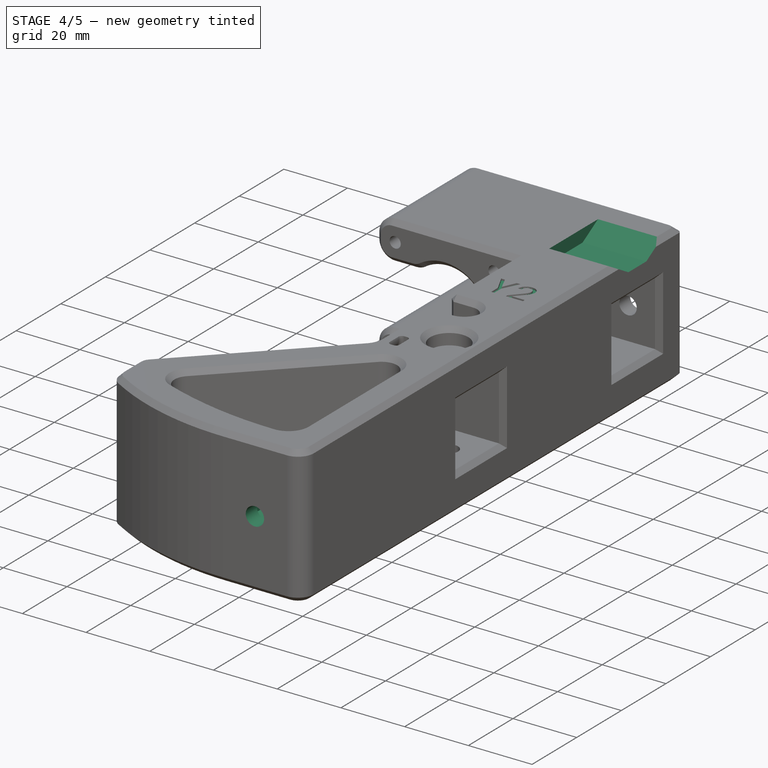
[diagram: stage 4 of 5 — iso view after this stage's code; geometry added in this stage tinted green]
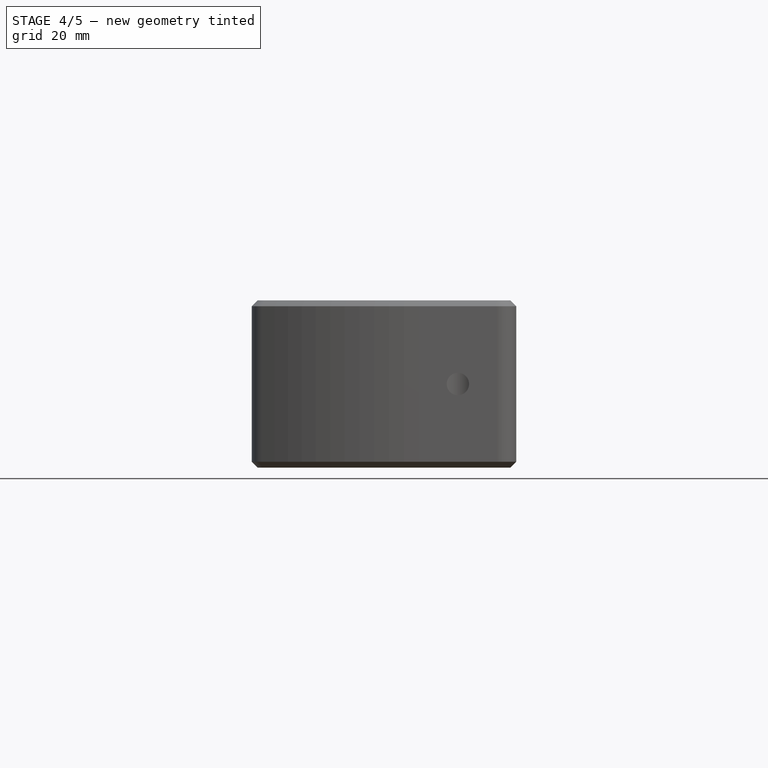
[diagram: stage 4 of 5 — front view after this stage's code; geometry added in this stage tinted green]
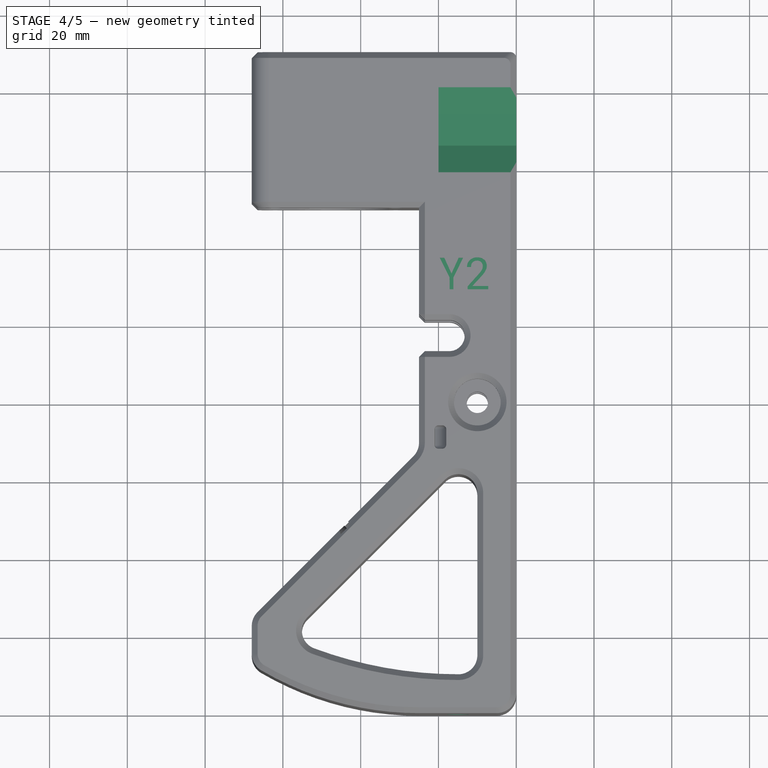
[diagram: stage 4 of 5 — top view after this stage's code; geometry added in this stage tinted green]
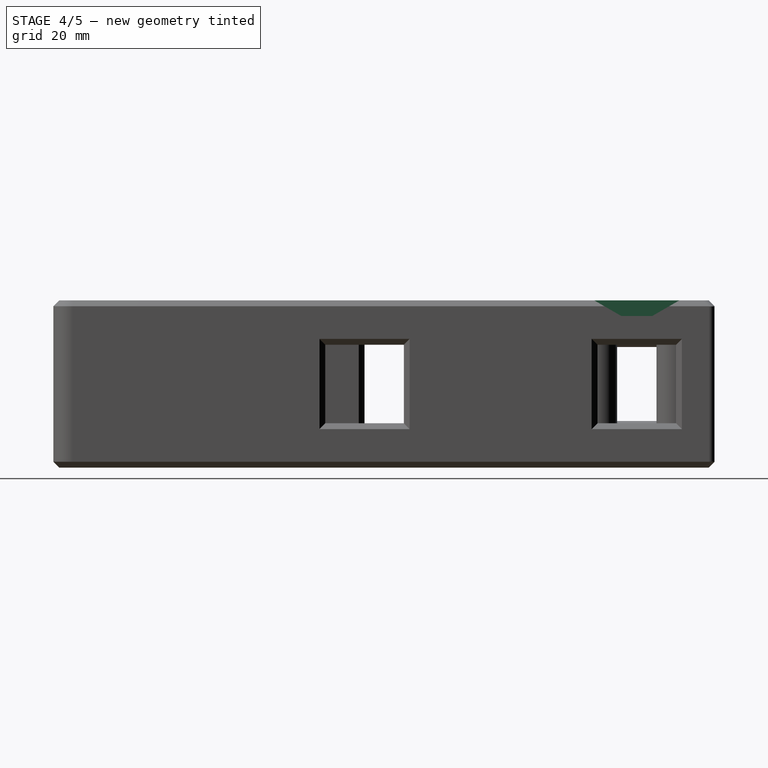
[diagram: stage 4 of 5 — right view after this stage's code; geometry added in this stage tinted green]
FEATURE [PartDesign::Pocket] Pocket008  label="Opulo Logo - Inner"
  BaseFeature = -> Pocket007
  Direction = (1,1,1)
  Length = 1
  Length2 = 100
  Profile = -> Sketch017
  Type = 0
FEATURE [PartDesign::Plane] DatumPlane006
  Length = 106.638
  MapMode = 5
  Placement = pos=(0,0,0) rot=(1,0,0;1.5708rad)
  ResizeMode = 0
  Support = -> [Pocket008]
  Width = 63.6382
FEATURE [Sketcher::SketchObject] Sketch019
  FullyConstrained = true
  MapMode = 5
  Placement = pos=(0,0,0) rot=(1,0,0;1.5708rad)
  Support = -> [DatumPlane006]
  sketch-geometry (1):
    g0: Circle CenterX=-15 CenterY=0 CenterZ=0 NormalX=0 NormalY=0 NormalZ=1 AngleXU=0 Radius=2.875
  constraints (3):
    c: PointOnObject(g0,g-1)
    c: DistanceX(g0,g-1) = 15
    c: Diameter(g0) = 5.75
FEATURE [PartDesign::Pocket] Pocket009
  BaseFeature = -> Pocket008
  Direction = (0,1,-2e-16)
  Length = 14
  Length2 = 5
  Profile = -> Sketch019
  ReferenceAxis = -> Sketch019 [N_Axis]
  Type = 0
FEATURE [PartDesign::Plane] DatumPlane007
  AttachmentOffset = pos=(0,0,-10) rot=(0,0,1;0rad)
  Length = 106.638
  MapMode = 5
  Placement = pos=(0,10,-2.2e-15) rot=(1,0,0;1.5708rad)
  ResizeMode = 0
  Support = -> [Pocket009]
  Width = 63.6382
FEATURE [Sketcher::SketchObject] Sketch020
  ExternalGeometry = -> [Pocket009]
  FullyConstrained = true
  MapMode = 5
  Placement = pos=(0,10,-2.2e-15) rot=(1,0,0;1.5708rad)
  Support = -> [DatumPlane007]
  sketch-geometry (7):
    g0: LineSegment StartX=-11 StartY=-2.3094 StartZ=0 EndX=-11 EndY=2.3094 EndZ=0
    g1: LineSegment StartX=-11 StartY=2.3094 StartZ=0 EndX=-15 EndY=4.6188 EndZ=0
    g2: LineSegment StartX=-15 StartY=4.6188 StartZ=0 EndX=-19 EndY=2.3094 EndZ=0
    g3: LineSegment StartX=-19 StartY=2.3094 StartZ=0 EndX=-19 EndY=-2.3094 EndZ=0
    g4: LineSegment StartX=-19 StartY=-2.3094 StartZ=0 EndX=-15 EndY=-4.6188 EndZ=0
    g5: LineSegment StartX=-15 StartY=-4.6188 StartZ=0 EndX=-11 EndY=-2.3094 EndZ=0
    g6: Circle CenterX=-15 CenterY=0 CenterZ=0 NormalX=0 NormalY=0 NormalZ=1 AngleXU=0 Radius=4.6188
  constraints (16):
    c: Coincident(g0,g1)
    c: Coincident(g1,g2)
    c: Coincident(g2,g3)
    c: Coincident(g3,g4)
    c: Coincident(g4,g5)
    c: Coincident(g5,g0)
    c: Equal(g0, g1-g5) x5
    c: PointOnObject(g0,g6)
    c: PointOnObject(g1,g6)
    c: PointOnObject(g2,g6)
    c: PointOnObject(g3,g6)
    c: PointOnObject(g4,g6)
    c: PointOnObject(g5,g6)
    c: Coincident(g6,g-3)
    c: Vertical(g0)
    c: DistanceX(g3,g0) = 8
FEATURE [PartDesign::Pocket] Pocket010
  BaseFeature = -> Pocket009
  Direction = (0,1,-2e-16)
  Length = 5
  Length2 = 5
  Profile = -> Sketch020
  ReferenceAxis = -> Sketch020 [N_Axis]
  Type = 4
FEATURE [PartDesign::Plane] DatumPlane008
  Length = 119.933
  MapMode = 5
  Placement = pos=(0,0,-21.5) rot=(1,0,0;3.14159rad)
  ResizeMode = 0
  Support = -> [Pocket010]
  Width = 221.933
FEATURE [Part::Part2DObjectPython] ShapeString  # Draft 2D object (typed FeaturePython)
  AttachmentOffset = pos=(-7,-109,0) rot=(0,0,1;3.14159rad)
  FontFile = <userpath>/Github/lumenpnp/lib/fonts/RobotoMono-VariableFont_weight.ttf
  MakeFace = true
  MapMode = 2
  Placement = pos=(-7,109,-21.5) rot=(0,-1,0;3.14159rad)
  Size = 10
  String = Y1
  Support = -> [DatumPlane008]
  Tracking = 0
FEATURE [PartDesign::Plane] DatumPlane009
  Length = 119.933
  MapMode = 5
  Placement = pos=(0,0,21.5) rot=(0,0,1;0rad)
  ResizeMode = 0
  Support = -> [Pocket010]
  Width = 221.933
FEATURE [Part::Part2DObjectPython] ShapeString001  # Draft 2D object (typed FeaturePython)
  AttachmentOffset = pos=(-20,109,0) rot=(0,0,1;0rad)
  FontFile = <userpath>/Github/lumenpnp/lib/fonts/RobotoMono-VariableFont_weight.ttf
  MakeFace = true
  MapMode = 2
  Placement = pos=(-20,109,21.5) rot=(0,0,1;0rad)
  Size = 10
  String = Y2
  Support = -> [DatumPlane009]
  Tracking = 0
FEATURE [PartDesign::Pocket] Pocket011
  BaseFeature = -> Pocket010
  Direction = (0,0,1)
  Length = 0.5
  Length2 = 5
  Profile = -> ShapeString
  ReferenceAxis = -> ShapeString [N_Axis]
  Type = 0
FEATURE [PartDesign::Pocket] Pocket012
  BaseFeature = -> Pocket011
  Direction = (0,0,-1)
  Length = 0.5
  Length2 = 5
  Profile = -> ShapeString001
  ReferenceAxis = -> ShapeString001 [N_Axis]
  Type = 0
FEATURE [Sketcher::SketchObject] Sketch021
  ExternalGeometry = -> [Pocket012]
  FullyConstrained = true
  MapMode = 5
  Placement = pos=(0,0,0) rot=(0.57735,0.57735,0.57735;2.0944rad)
  Support = -> [Pocket012]
  sketch-geometry (10):
    g0: LineSegment StartX=146 StartY=21.5 StartZ=0 EndX=146 EndY=17.5 EndZ=0
    g1: LineSegment StartX=146 StartY=17.5 StartZ=0 EndX=154 EndY=17.5 EndZ=0
    g2: LineSegment StartX=154 StartY=17.5 StartZ=0 EndX=154 EndY=21.5 EndZ=0
    g3: LineSegment StartX=154 StartY=21.5 StartZ=0 EndX=146 EndY=21.5 EndZ=0
    g4: GeomPoint X=150 Y=19.5 Z=0
    g5: GeomPoint X=150 Y=10.1 Z=0
    g6: LineSegment StartX=146 StartY=17.5 StartZ=0 EndX=139.072 EndY=21.5 EndZ=0
    g7: LineSegment StartX=154 StartY=17.5 StartZ=0 EndX=160.928 EndY=21.5 EndZ=0
    g8: LineSegment StartX=150 StartY=10.1 StartZ=0 EndX=150 EndY=21.5 EndZ=0
    g9: LineSegment StartX=139.072 StartY=21.5 StartZ=0 EndX=160.928 EndY=21.5 EndZ=0
  constraints (24):
    c: Coincident(g0,g1)
    c: Coincident(g1,g2)
    c: Coincident(g2,g3)
    c: Coincident(g3,g0)
    c: Horizontal(g1)
    c: Horizontal(g3)
    c: Vertical(g0)
    c: Vertical(g2)
    c: Symmetric(g1,g0,g4)
    c: Symmetric(g-3,g-3,g5)
    c: Vertical(g5,g4)
    c: DistanceX(g1,g1) = 8
    c: PointOnObject(g2,g-5)
    c: DistanceY(g2,g2) = 4
    c: Coincident(g6,g0)
    c: PointOnObject(g6,g-5)
    c: Coincident(g7,g1)
    c: PointOnObject(g7,g-5)
    c: Coincident(g8,g5)
    c: PointOnObject(g8,g3)
    c: Symmetric(g6,g7,g8)
    c: Angle(g0,g6) = 1.0472
    c: Coincident(g9,g6)
    c: Coincident(g9,g7)
FEATURE [PartDesign::Pocket] Pocket013
  AlongSketchNormal = false
  BaseFeature = -> Pocket012
  Direction = (-1,0,0)
  Length = 20
  Length2 = 5
  Profile = -> Sketch021
  ReferenceAxis = -> Sketch021 [N_Axis]
  Type = 0
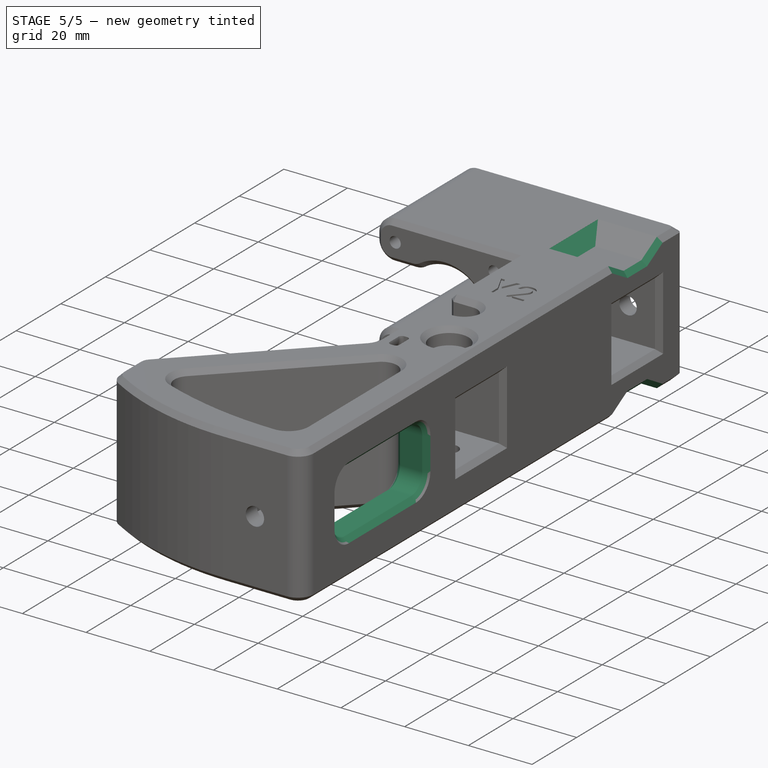
[diagram: stage 5 of 5 — iso view after this stage's code; geometry added in this stage tinted green]
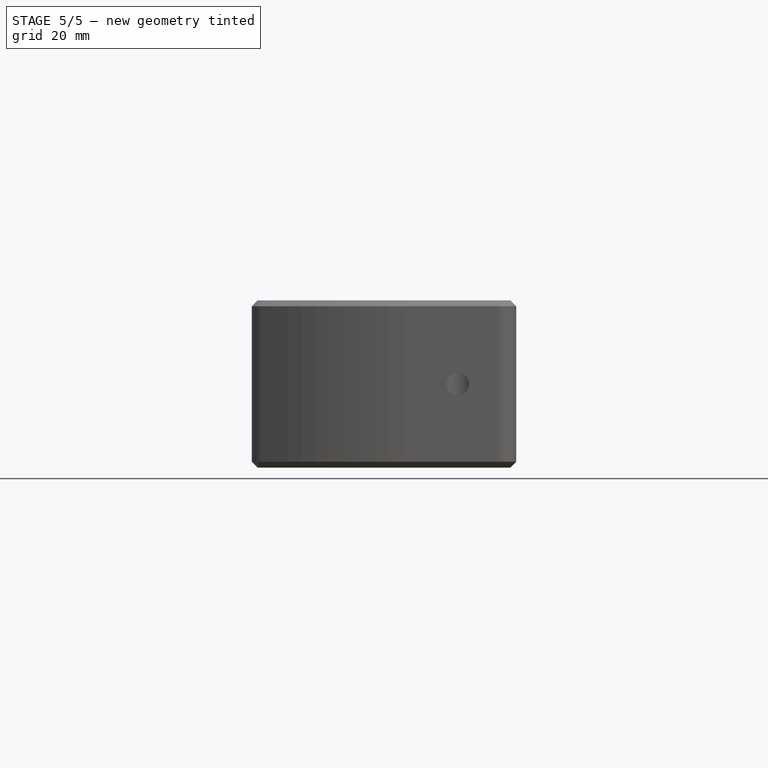
[diagram: stage 5 of 5 — front view after this stage's code; geometry added in this stage tinted green]
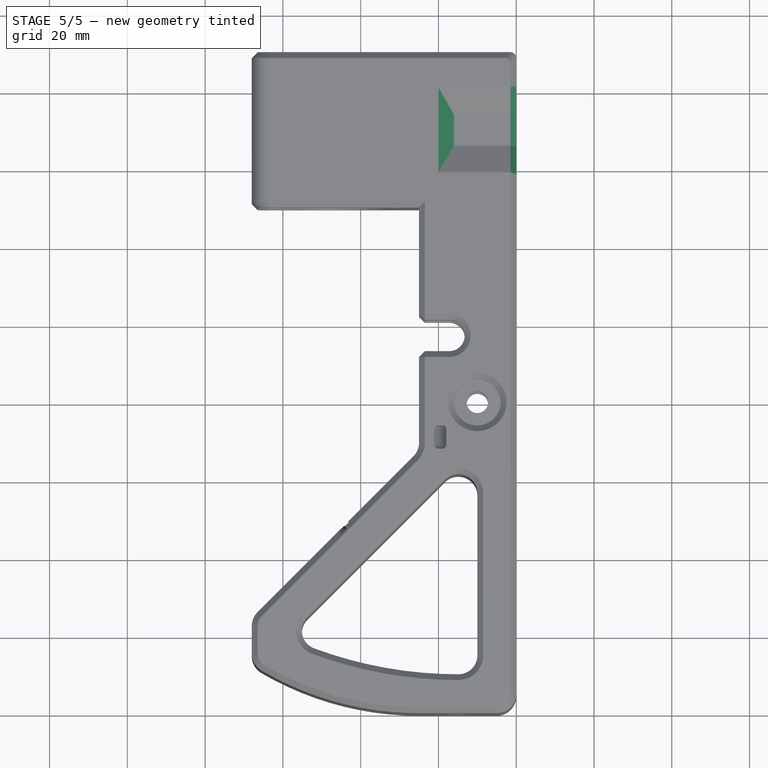
[diagram: stage 5 of 5 — top view after this stage's code; geometry added in this stage tinted green]
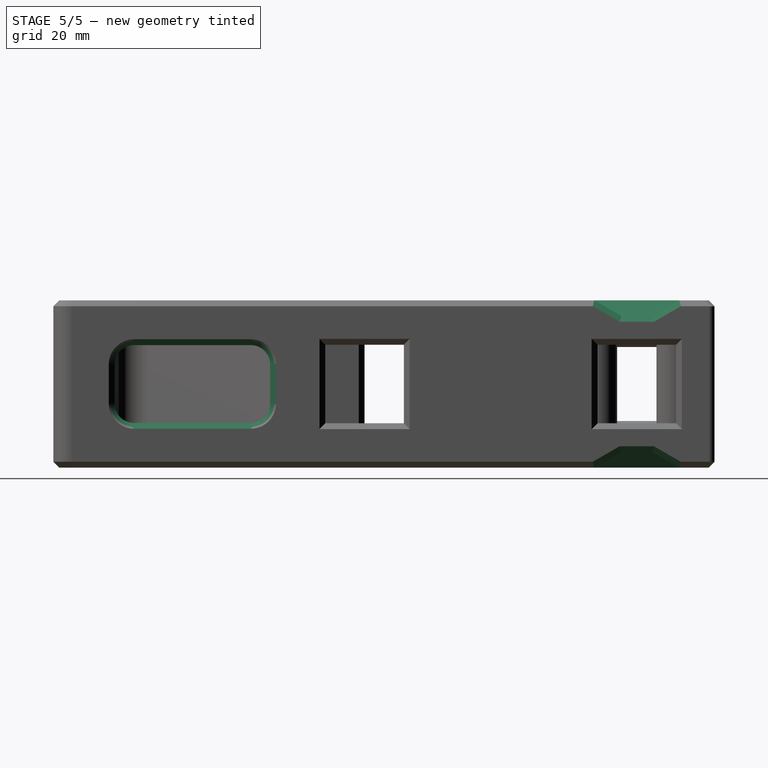
[diagram: stage 5 of 5 — right view after this stage's code; geometry added in this stage tinted green]
FEATURE [PartDesign::Chamfer] Chamfer001
  Angle = 45
  Base = -> Pocket013 [Edge181,Edge180,Edge179]
  BaseFeature = -> Pocket013
  ChamferType = 0
  FlipDirection = false
  Size = 1.5
  Size2 = 1
  SupportTransform = false
  UseAllEdges = false
FEATURE [PartDesign::Chamfer] Chamfer002
  Angle = 45
  Base = -> Chamfer001 [Edge157]
  BaseFeature = -> Chamfer001
  ChamferType = 2
  FlipDirection = false
  Size = 3.98
  Size2 = 1
  SupportTransform = false
  UseAllEdges = false
FEATURE [PartDesign::Mirrored] Mirrored002
  BaseFeature = -> Chamfer002
  MirrorPlane = -> XY_Plane
  Originals = -> [Pocket013,Chamfer002,Chamfer001]
FEATURE [Sketcher::SketchObject] Sketch022
  ExternalGeometry = -> [Mirrored002]
  FullyConstrained = true
  MapMode = 5
  Placement = pos=(0,0,0) rot=(0.57735,0.57735,0.57735;2.0944rad)
  Support = -> [Mirrored002]
  sketch-geometry (6):
    g0: LineSegment StartX=15.7318 StartY=-10 StartZ=0 EndX=15.7318 EndY=10 EndZ=0
    g1: LineSegment StartX=15.7318 StartY=10 StartZ=0 EndX=55.7318 EndY=10 EndZ=0
    g2: LineSegment StartX=55.7318 StartY=10 StartZ=0 EndX=55.7318 EndY=-10 EndZ=0
    g3: LineSegment StartX=55.7318 StartY=-10 StartZ=0 EndX=15.7318 EndY=-10 EndZ=0
    g4: GeomPoint X=35.7318 Y=0 Z=0
    g5: LineSegment StartX=14.875 StartY=0 StartZ=0 EndX=56.5886 EndY=0 EndZ=0
  constraints (16):
    c: Coincident(g0,g1)
    c: Coincident(g1,g2)
    c: Coincident(g2,g3)
    c: Coincident(g3,g0)
    c: Horizontal(g1)
    c: Horizontal(g3)
    c: Vertical(g0)
    c: Vertical(g2)
    c: Symmetric(g1,g0,g4)
    c: PointOnObject(g4,g-1)
    c: Distance(g0) = 20
    c: DistanceX(g1,g1) = 40
    c: PointOnObject(g5,g-4)
    c: PointOnObject(g5,g-5)
    c: Horizontal(g5)
    c: Symmetric(g5,g5,g4)
FEATURE [PartDesign::Pocket] Pocket014
  BaseFeature = -> Mirrored002
  Direction = (-1,0,0)
  Length = 5
  Length2 = 5
  Profile = -> Sketch022
  ReferenceAxis = -> Sketch022 [N_Axis]
  Type = 2
FEATURE [PartDesign::Fillet] Fillet004
  Base = -> Pocket014 [Edge296,Edge298,Edge295,Edge293]
  BaseFeature = -> Pocket014
  Radius = 5
  SupportTransform = false
  UseAllEdges = false
FEATURE [PartDesign::Chamfer] Chamfer003
  Angle = 45
  Base = -> Fillet004 [Edge5,Edge41,Edge8,Edge1,Edge33,Edge39,Edge4]
  BaseFeature = -> Fillet004
  ChamferType = 0
  FlipDirection = false
  Size = 1.5
  Size2 = 1
  SupportTransform = false
  UseAllEdges = false
FEATURE [PartDesign::Body] Body
  Group = -> [Sketch,Pad,Sketch002,Pocket,DatumPlane,Sketch003,Pocket001,Hole,DatumPlane001,Sketch004,Pocket002,Mirrored,Sketch005,Hole001,Sketch006,Pocket003,Sketch007,Pocket004,Sketch008,Pocket005,Sketch009,DatumPlane002,Sketch010,Pocket006,Fillet,Chamfer,Fillet001,Fillet002,DatumPlane003,DatumPlane004,Sketch015,DatumLine,Groove,Mirrored001,Fillet003,DatumPlane005,Sketch018,Sketch017,Pocket007,Pocket008,+21 more]
  Origin = -> Origin
  Tip = -> Chamfer003
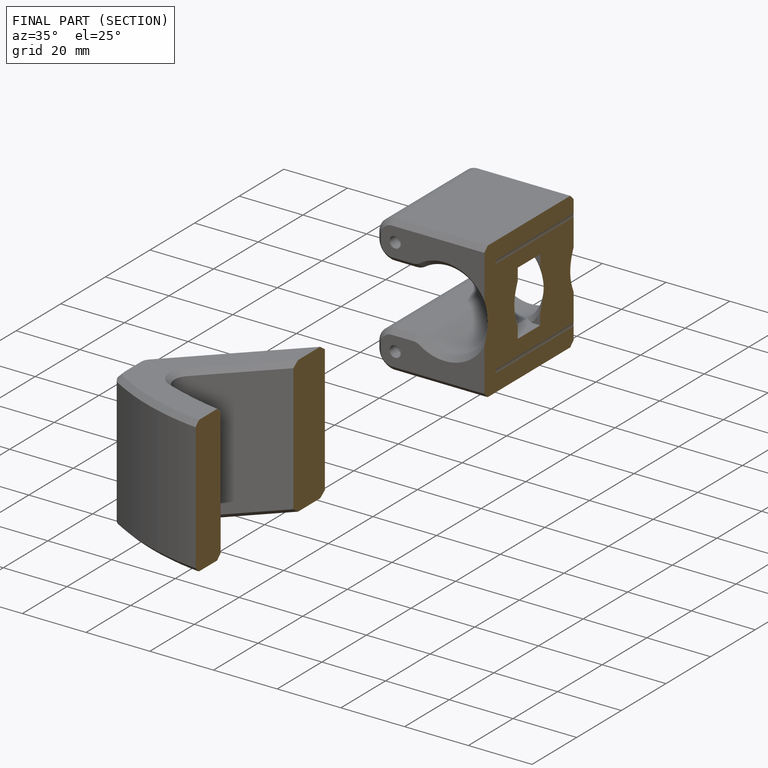
[diagram: finished part — half-section view (interior)]
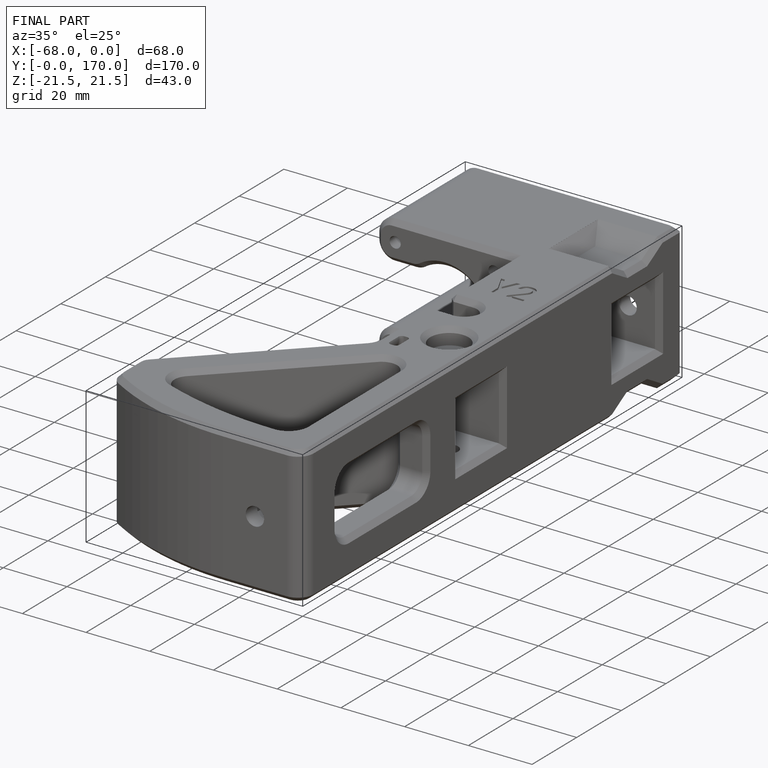
[diagram: finished part — iso view with bounding-box wireframe]
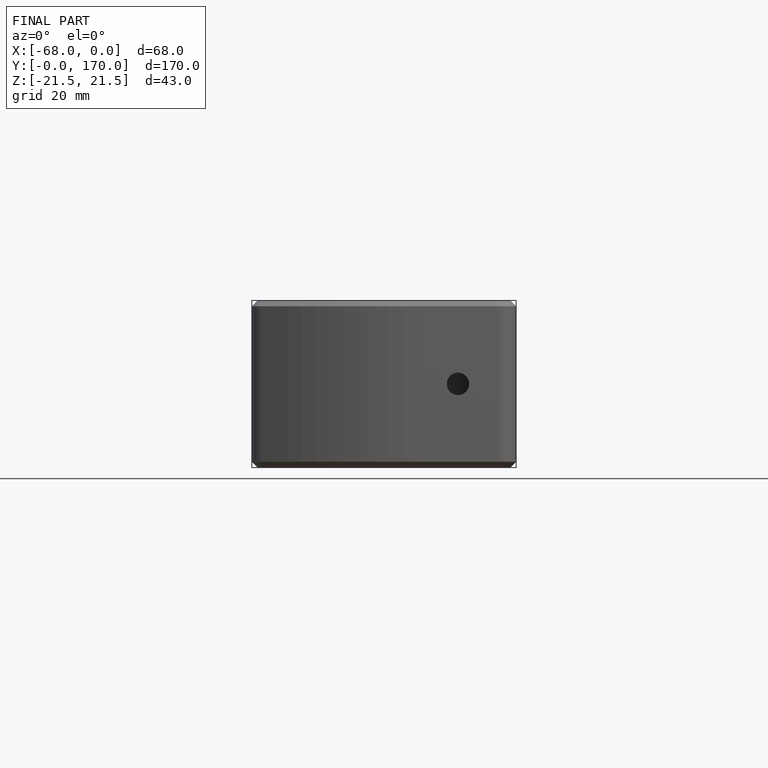
[diagram: finished part — front view with bounding-box wireframe]
